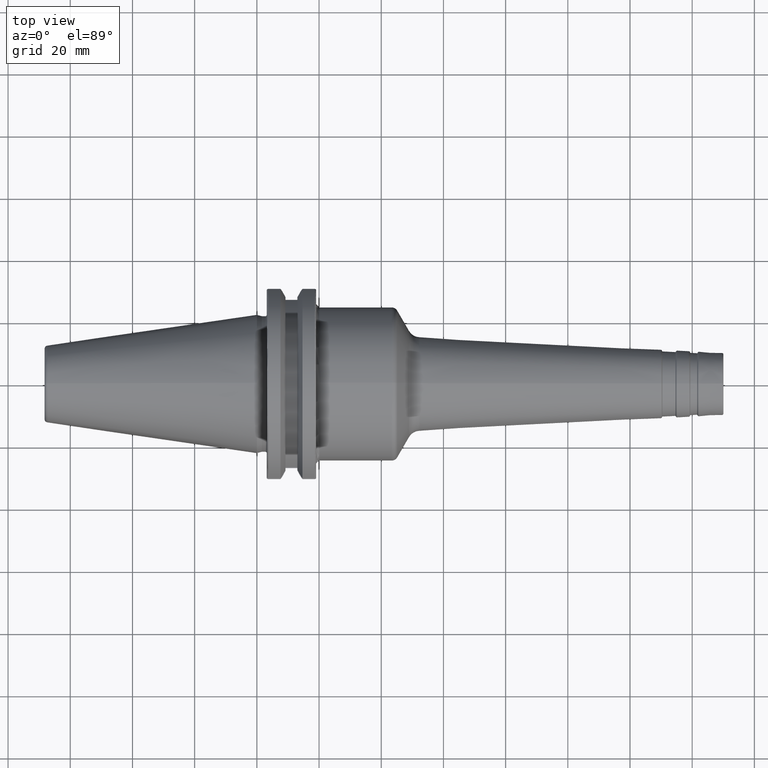
[diagram: clean part render]
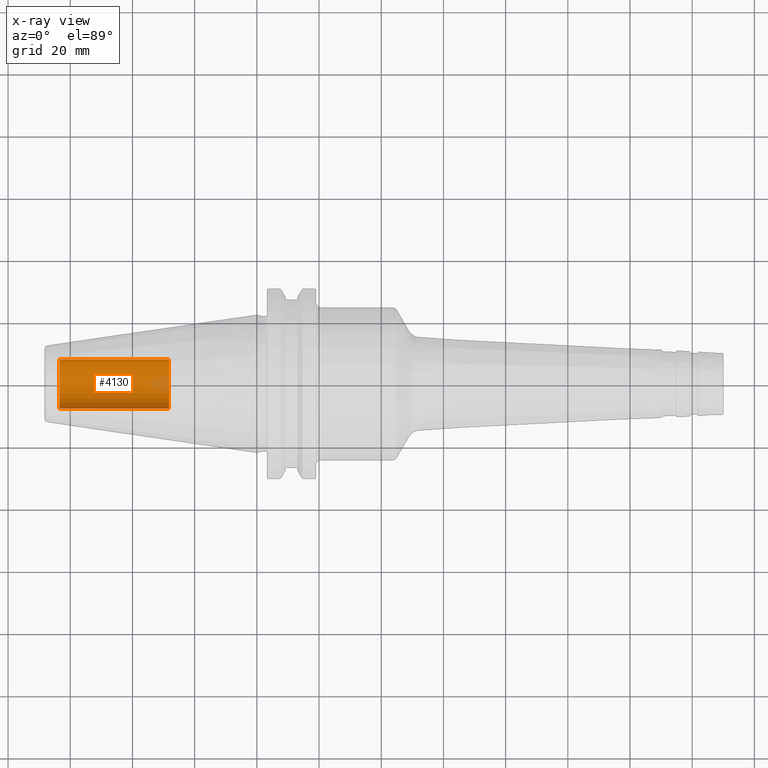
[diagram: x-ray — body ghosted, one internal face saturated and labeled with its STEP entity id]
A machine part, top view, then the same camera in x-ray: the body is ghosted and one INTERNAL B-rep face — a face not visible from any outside direction — is saturated and labeled: STEP entity #4130.
In plain terms, the highlighted cylindrical surface (edge-blend (fillet) strip) has radius 7.9375 mm, axis along (-1, 0, 0).
Its self-contained STEP definition (entity closure, byte-faithful):
#4065=CARTESIAN_POINT('',(-6.345E1,0.E0,0.E0));
#4066=DIRECTION('',(1.E0,0.E0,0.E0));
#4067=DIRECTION('',(0.E0,-1.E0,0.E0));
#4068=AXIS2_PLACEMENT_3D('',#4065,#4066,#4067);
#4075=DIRECTION('',(1.E0,0.E0,0.E0));
#4076=VECTOR('',#4075,3.52E1);
#4077=CARTESIAN_POINT('',(-6.345E1,-7.9375E0,0.E0));
#4078=LINE('',#4077,#4076);
#4079=DIRECTION('',(1.E0,0.E0,0.E0));
#4080=VECTOR('',#4079,3.52E1);
#4081=CARTESIAN_POINT('',(-6.345E1,7.9375E0,0.E0));
#4082=LINE('',#4081,#4080);
#4088=CARTESIAN_POINT('',(-2.825E1,0.E0,0.E0));
#4089=DIRECTION('',(-1.E0,0.E0,0.E0));
#4090=DIRECTION('',(0.E0,1.E0,0.E0));
#4091=AXIS2_PLACEMENT_3D('',#4088,#4089,#4090);
#4103=CARTESIAN_POINT('',(-2.825E1,7.9375E0,0.E0));
#4104=CARTESIAN_POINT('',(-2.825E1,-7.9375E0,0.E0));
#4105=VERTEX_POINT('',#4103);
#4106=VERTEX_POINT('',#4104);
#4107=CARTESIAN_POINT('',(-6.345E1,7.9375E0,0.E0));
#4108=CARTESIAN_POINT('',(-6.345E1,-7.9375E0,0.E0));
#4109=VERTEX_POINT('',#4107);
#4110=VERTEX_POINT('',#4108);
#4115=CARTESIAN_POINT('',(-1.674377256037E1,0.E0,0.E0));
#4116=DIRECTION('',(-1.E0,0.E0,0.E0));
#4117=DIRECTION('',(0.E0,1.E0,0.E0));
#4118=AXIS2_PLACEMENT_3D('',#4115,#4116,#4117);
#4119=CYLINDRICAL_SURFACE('',#4118,7.9375E0);
#4121=ORIENTED_EDGE('',*,*,#4120,.T.);
#4123=ORIENTED_EDGE('',*,*,#4122,.T.);
#4125=ORIENTED_EDGE('',*,*,#4124,.T.);
#4127=ORIENTED_EDGE('',*,*,#4126,.F.);
#4128=EDGE_LOOP('',(#4121,#4123,#4125,#4127));
#4129=FACE_OUTER_BOUND('',#4128,.F.);
#4130=ADVANCED_FACE('',(#4129),#4119,.F.);
#4069=CIRCLE('',#4068,7.9375E0);
#4092=CIRCLE('',#4091,7.9375E0);
#4120=EDGE_CURVE('',#4110,#4109,#4069,.T.);
#4122=EDGE_CURVE('',#4109,#4105,#4082,.T.);
#4124=EDGE_CURVE('',#4105,#4106,#4092,.T.);
#4126=EDGE_CURVE('',#4110,#4106,#4078,.T.);